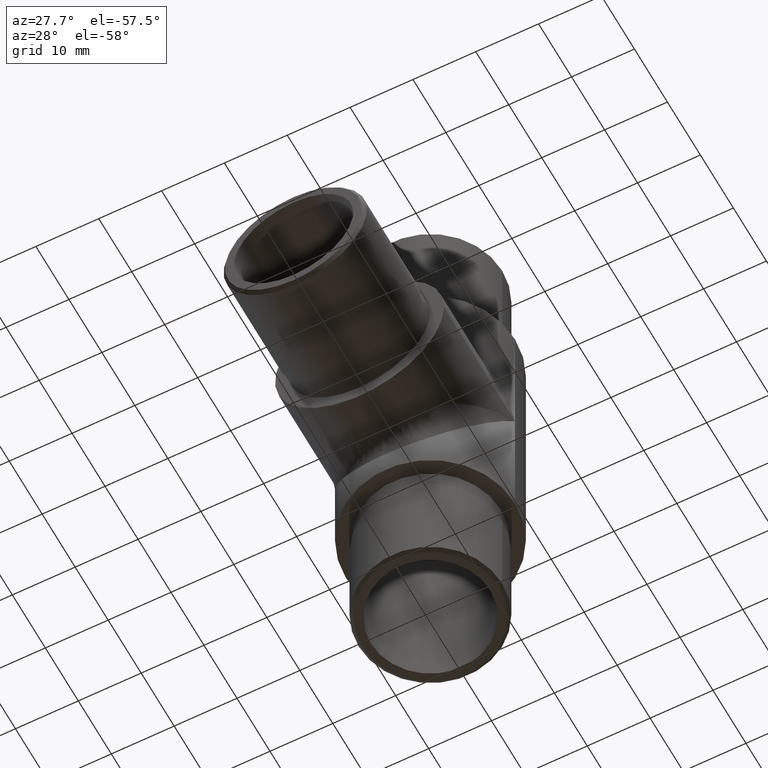
[diagram: clean part render]
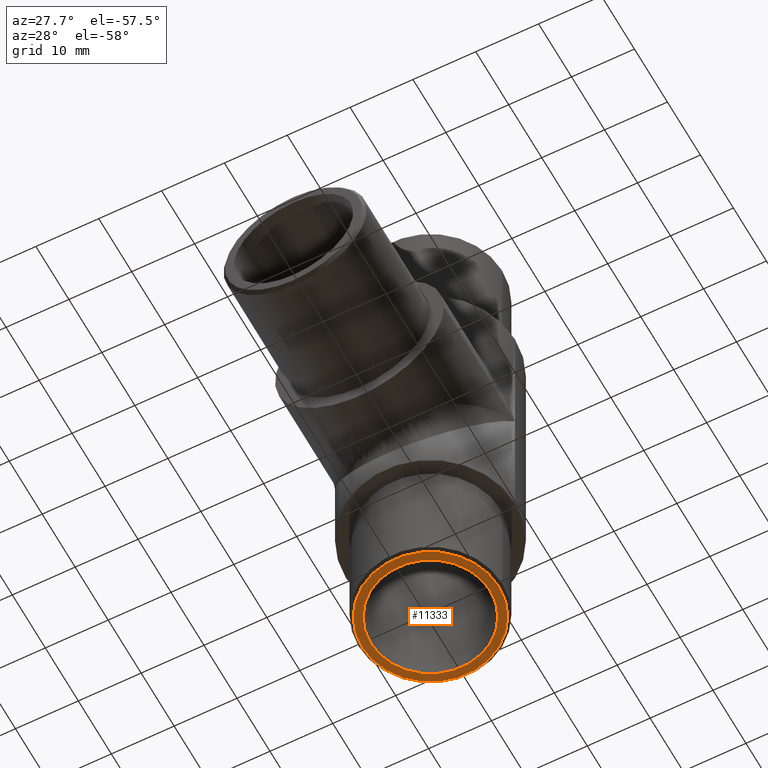
[diagram: same view with one face highlighted and labeled with its STEP entity id]
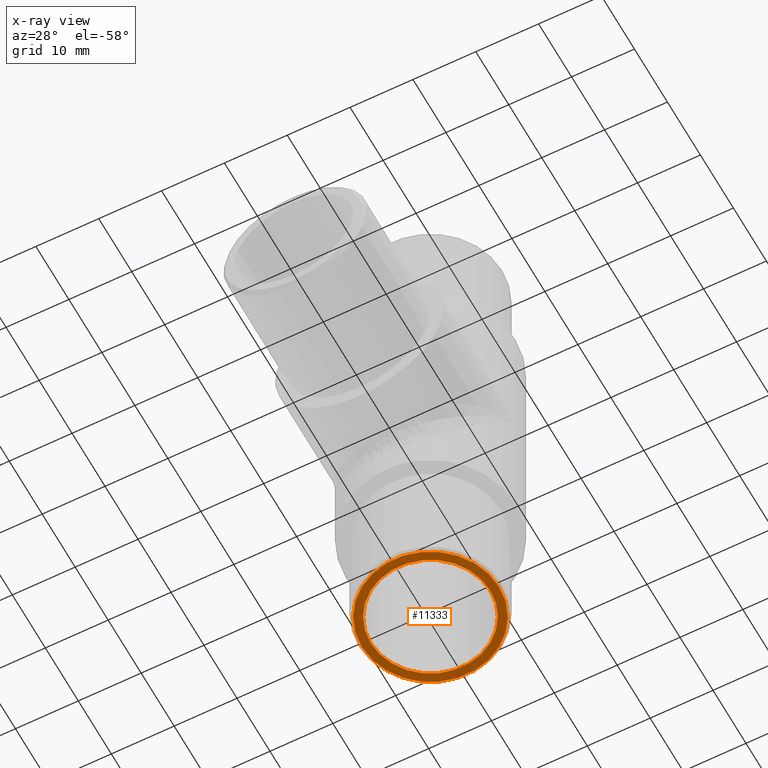
[diagram: x-ray of the same camera — body ghosted, the highlighted face saturated]
A machine part, auxiliary view. The second image highlights one B-rep face of the part: STEP entity #11333.
The next image is the same camera in x-ray: the body ghosted, the highlighted face saturated — about 0% of this face is hidden behind the body in this view.
In plain terms, the highlighted planar face has unit normal (0, 0, -1).
Its self-contained STEP definition (entity closure, byte-faithful):
#1026 = EDGE_CURVE ( 'NONE', #12829, #12829, #2438, .T. ) ;
#1371 = AXIS2_PLACEMENT_3D ( 'NONE', #10549, #10625, #3575 ) ;
#2219 = DIRECTION ( 'NONE',  ( 0.0000000000000000000, 0.0000000000000000000, -1.000000000000000000 ) ) ;
#2438 = CIRCLE ( 'NONE', #1371, 10.89999999999999900 ) ;
#2608 = AXIS2_PLACEMENT_3D ( 'NONE', #9851, #8978, #12901 ) ;
#3082 = PLANE ( 'NONE',  #12716 ) ;
#3575 = DIRECTION ( 'NONE',  ( -1.000000000000000000, 0.0000000000000000000, 0.0000000000000000000 ) ) ;
#4126 = CARTESIAN_POINT ( 'NONE',  ( 0.0000000000000000000, 41.50000000000000000, -41.49999999999999300 ) ) ;
#4417 = CARTESIAN_POINT ( 'NONE',  ( -10.89999999999999900, 41.50000000000000000, -41.49999999999999300 ) ) ;
#6976 = EDGE_LOOP ( 'NONE', ( #11377 ) ) ;
#7706 = FACE_OUTER_BOUND ( 'NONE', #11756, .T. ) ;
#8341 = ORIENTED_EDGE ( 'NONE', *, *, #1026, .T. ) ;
#8371 = EDGE_CURVE ( 'NONE', #10338, #10338, #9372, .T. ) ;
#8978 = DIRECTION ( 'NONE',  ( -0.0000000000000000000, -0.0000000000000000000, 1.000000000000000000 ) ) ;
#9043 = DIRECTION ( 'NONE',  ( 1.000000000000000000, 0.0000000000000000000, 0.0000000000000000000 ) ) ;
#9372 = CIRCLE ( 'NONE', #2608, 9.500000000000000000 ) ;
#9462 = CARTESIAN_POINT ( 'NONE',  ( 9.500000000000000000, 41.50000000000000000, -41.49999999999999300 ) ) ;
#9851 = CARTESIAN_POINT ( 'NONE',  ( 0.0000000000000000000, 41.50000000000000000, -41.49999999999999300 ) ) ;
#10338 = VERTEX_POINT ( 'NONE', #9462 ) ;
#10549 = CARTESIAN_POINT ( 'NONE',  ( 0.0000000000000000000, 41.50000000000000000, -41.49999999999999300 ) ) ;
#10625 = DIRECTION ( 'NONE',  ( 0.0000000000000000000, 0.0000000000000000000, -1.000000000000000000 ) ) ;
#11333 = ADVANCED_FACE ( 'NONE', ( #7706, #12696 ), #3082, .T. ) ;
#11377 = ORIENTED_EDGE ( 'NONE', *, *, #8371, .T. ) ;
#11756 = EDGE_LOOP ( 'NONE', ( #8341 ) ) ;
#12696 = FACE_BOUND ( 'NONE', #6976, .T. ) ;
#12716 = AXIS2_PLACEMENT_3D ( 'NONE', #4126, #2219, #9043 ) ;
#12829 = VERTEX_POINT ( 'NONE', #4417 ) ;
#12901 = DIRECTION ( 'NONE',  ( 1.000000000000000000, 0.0000000000000000000, 0.0000000000000000000 ) ) ;